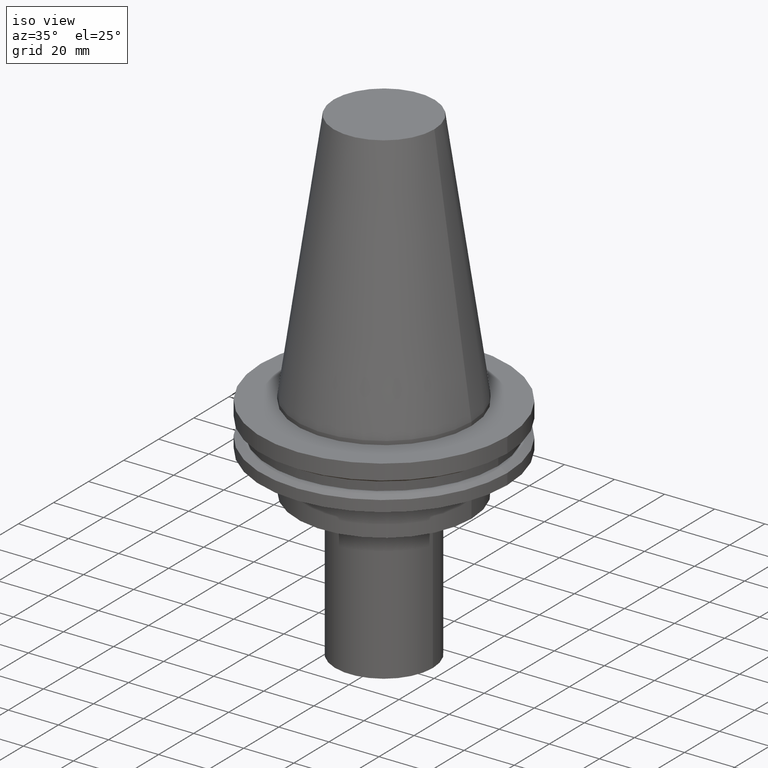
[diagram: clean part render]
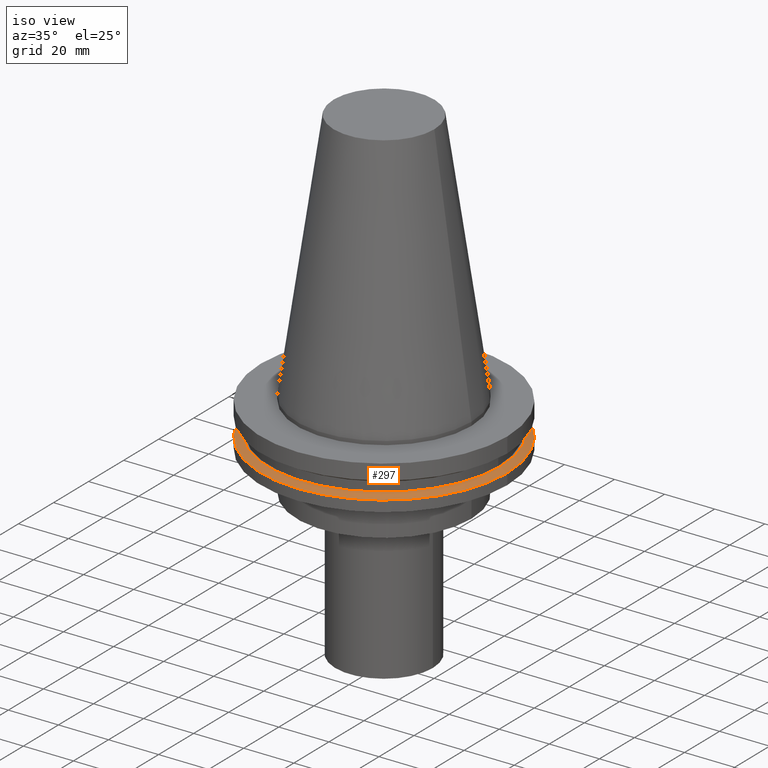
[diagram: same view with one face highlighted and labeled with its STEP entity id]
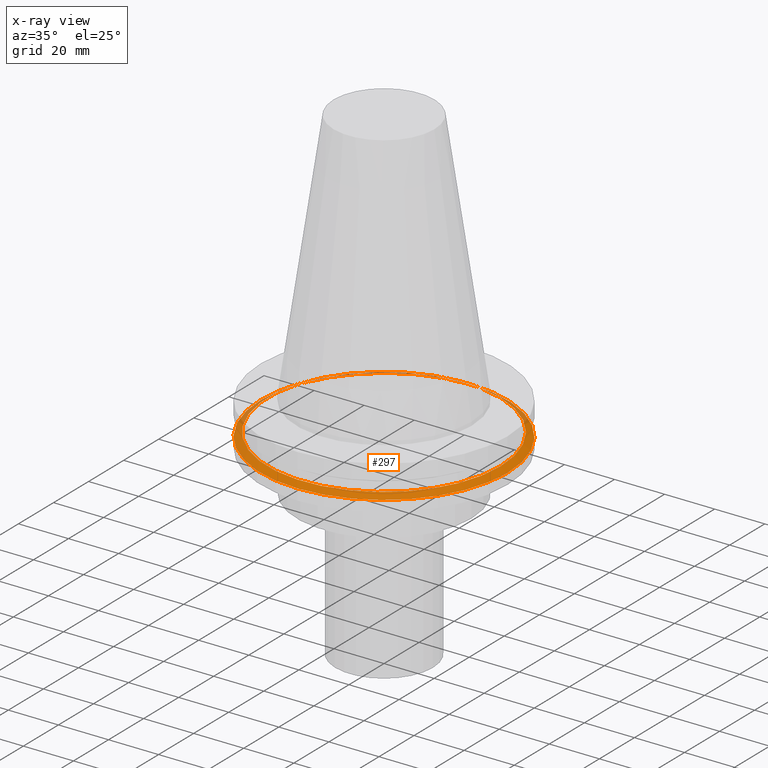
[diagram: x-ray of the same camera — body ghosted, the highlighted face saturated]
A machine part, iso view. The second image highlights one B-rep face of the part: STEP entity #297.
The next image is the same camera in x-ray: the body ghosted, the highlighted face saturated — about 11% of this face is hidden behind the body in this view.
In plain terms, the highlighted conical surface has half-angle 60 deg.
Its self-contained STEP definition (entity closure, byte-faithful):
#30 = ORIENTED_EDGE ( 'NONE', *, *, #359, .F. ) ;
#57 = DIRECTION ( 'NONE',  ( 1.000000000000000000, 0.000000000000000000, 0.000000000000000000 ) ) ;
#61 = CARTESIAN_POINT ( 'NONE',  ( 46.43919780457007818, 0.000000000000000000, -13.05499999999999794 ) ) ;
#75 = AXIS2_PLACEMENT_3D ( 'NONE', #136, #106, #382 ) ;
#78 = FACE_BOUND ( 'NONE', #306, .T. ) ;
#79 = AXIS2_PLACEMENT_3D ( 'NONE', #195, #141, #377 ) ;
#86 = VERTEX_POINT ( 'NONE', #211 ) ;
#104 = AXIS2_PLACEMENT_3D ( 'NONE', #355, #328, #57 ) ;
#106 = DIRECTION ( 'NONE',  ( -0.000000000000000000, -0.000000000000000000, 1.000000000000000000 ) ) ;
#136 = CARTESIAN_POINT ( 'NONE',  ( 0.000000000000000000, 0.000000000000000000, -14.65761014474876944 ) ) ;
#141 = DIRECTION ( 'NONE',  ( 0.000000000000000000, 0.000000000000000000, -1.000000000000000000 ) ) ;
#147 = EDGE_LOOP ( 'NONE', ( #279 ) ) ;
#195 = CARTESIAN_POINT ( 'NONE',  ( 0.000000000000000000, 0.000000000000000000, -14.65761014474876944 ) ) ;
#211 = CARTESIAN_POINT ( 'NONE',  ( 49.21499999999998920, 0.000000000000000000, -14.65761014474876944 ) ) ;
#229 = CIRCLE ( 'NONE', #75, 49.21499999999998920 ) ;
#231 = FACE_OUTER_BOUND ( 'NONE', #147, .T. ) ;
#248 = CONICAL_SURFACE ( 'NONE', #79, 49.21499999999998920, 1.047197551196554333 ) ;
#268 = VERTEX_POINT ( 'NONE', #61 ) ;
#279 = ORIENTED_EDGE ( 'NONE', *, *, #305, .T. ) ;
#297 = ADVANCED_FACE ( 'NONE', ( #78, #231 ), #248, .T. ) ;
#305 = EDGE_CURVE ( 'NONE', #86, #86, #229, .T. ) ;
#306 = EDGE_LOOP ( 'NONE', ( #30 ) ) ;
#328 = DIRECTION ( 'NONE',  ( -0.000000000000000000, -0.000000000000000000, 1.000000000000000000 ) ) ;
#347 = CIRCLE ( 'NONE', #104, 46.43919780457007818 ) ;
#355 = CARTESIAN_POINT ( 'NONE',  ( 0.000000000000000000, 0.000000000000000000, -13.05499999999999794 ) ) ;
#359 = EDGE_CURVE ( 'NONE', #268, #268, #347, .T. ) ;
#377 = DIRECTION ( 'NONE',  ( -1.000000000000000000, 0.000000000000000000, 0.000000000000000000 ) ) ;
#382 = DIRECTION ( 'NONE',  ( 1.000000000000000000, 0.000000000000000000, 0.000000000000000000 ) ) ;